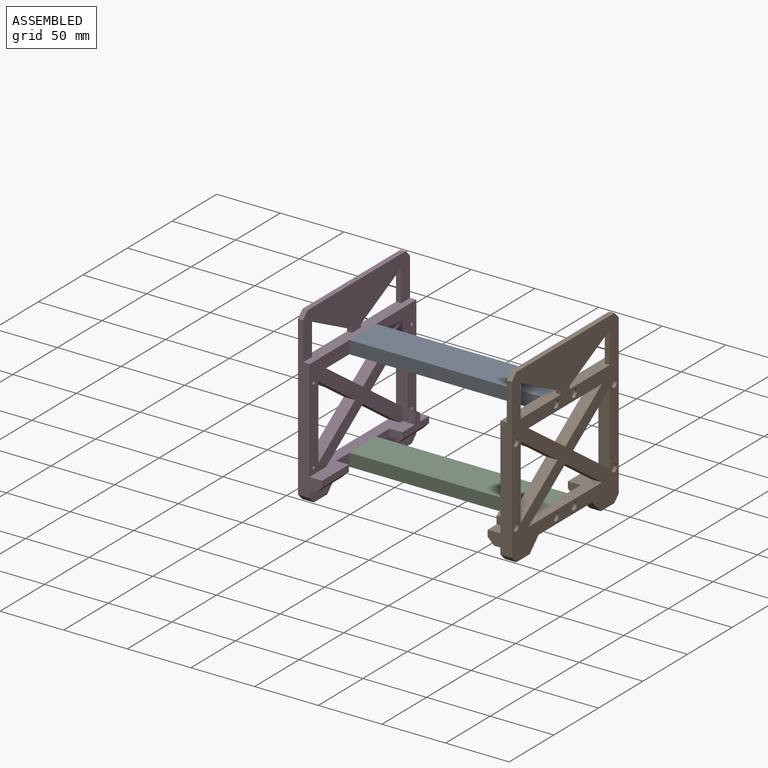
[diagram: assembled view]
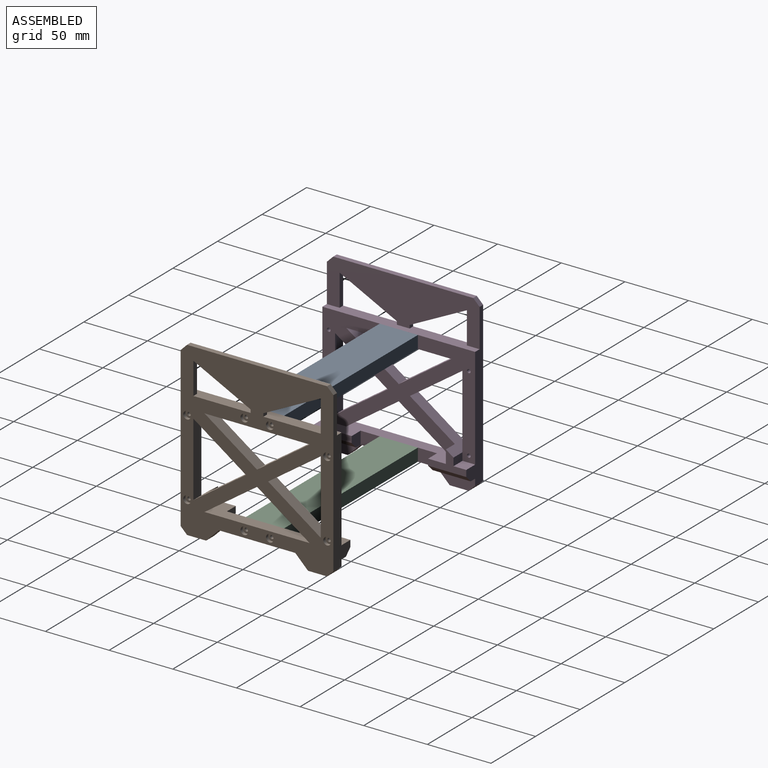
[diagram: assembled view, second angle]
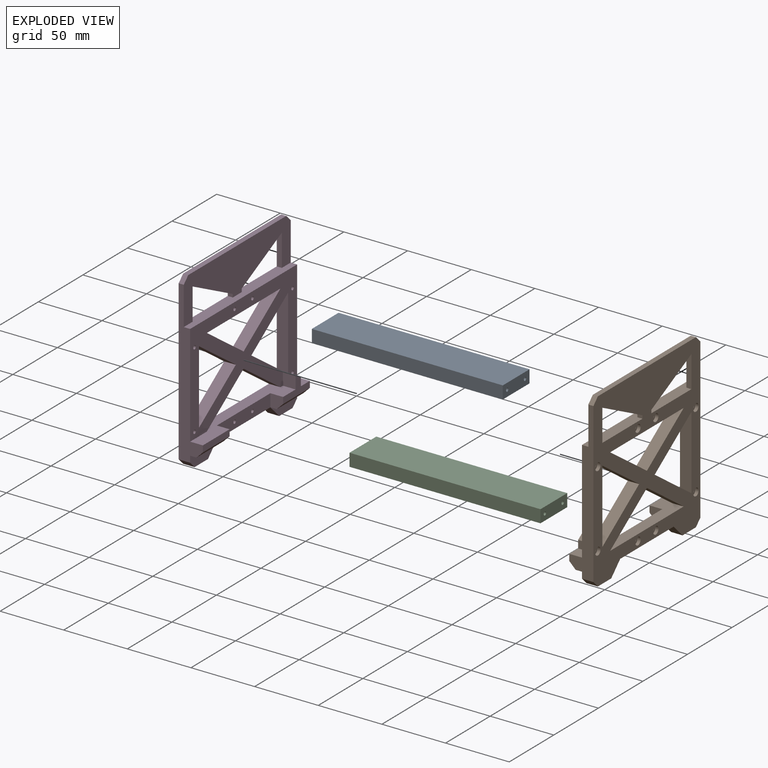
[diagram: exploded view]
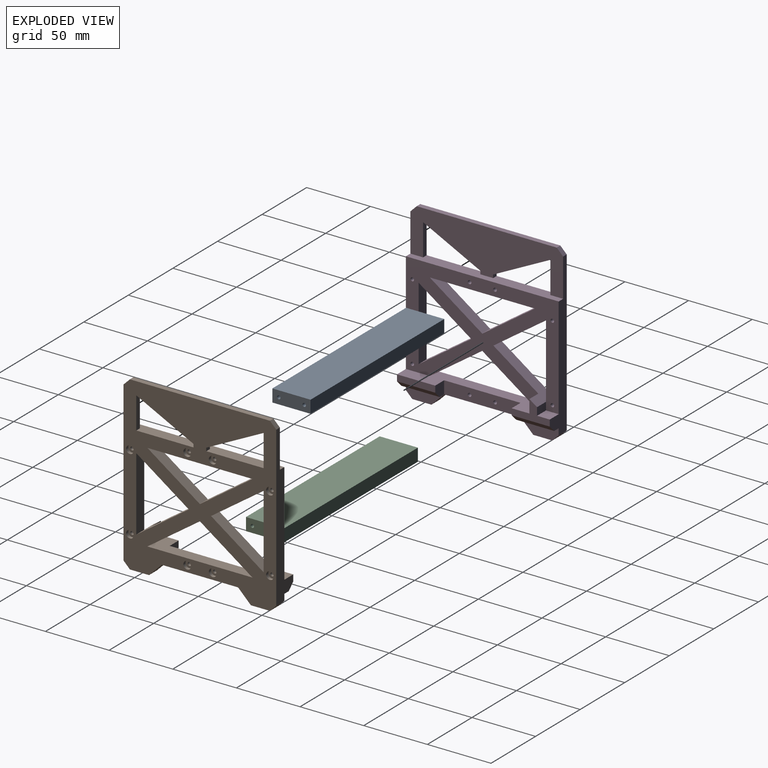
[diagram: exploded view, second angle]
ASSEMBLY  parts=4 mates=3
PART A: 14 faces, bbox 150x30x10 mm
  f0: plane 150x10mm, normal (0,-1,0), area 1500mm2, adj f1,f3,f4,f5
  f1: plane 30x10mm, normal (1,0,0), area 288.5mm2, adj f0,f2,f4,f5,f11,f13
  f2: plane 150x10mm, normal (0,1,0), area 1500mm2, adj f1,f3,f4,f5
  f3: plane 30x10mm, normal (-1,0,0), area 288.5mm2, adj f0,f2,f4,f5,f7,f9
  f4: plane 150x30mm, normal (0,0,1), area 4500mm2, adj f0,f1,f2,f3
  f5: plane 150x30mm, normal (0,0,-1), area 4500mm2, adj f0,f1,f2,f3
  f6: cone r=0mm half-angle=59deg, axis (-1,0,0), area 6.7mm2, adj f7
  f7: cylinder r=1.35mm len=10mm, axis (-1,0,0), area 84.8mm2, adj f3,f6
  f8: cone r=0mm half-angle=59deg, axis (-1,0,0), area 6.7mm2, adj f9
  f9: cylinder r=1.35mm len=10mm, axis (-1,0,0), area 84.8mm2, adj f3,f8
  f10: cone r=0mm half-angle=59deg, axis (1,0,0), area 6.7mm2, adj f11
  f11: cylinder r=1.35mm len=10mm, axis (1,0,0), area 84.8mm2, adj f1,f10
  f12: cone r=0mm half-angle=59deg, axis (1,0,0), area 6.7mm2, adj f13
  f13: cylinder r=1.35mm len=10mm, axis (1,0,0), area 84.8mm2, adj f1,f12
PART B: 72 faces, bbox 120x19x135 mm
  f0: plane 135x120mm, normal (0,1,0), area 9214.8mm2, adj f4,f5,f6,f7,f8,f9,f10,f11
  f1: plane 30x10mm, normal (0,-1,0), area 237.5mm2, adj f10,f11,f12,f29,f38
  f2: plane 60x10mm, normal (0,-1,0), area 587.7mm2, adj f5,f9,f31,f37,f42,f45
  f3: plane 120x80mm, normal (0,-1,0), area 4742.3mm2, adj f4,f5,f6,f7,f12,f13,f14,f15
  f4: plane 41.28x28.9mm, normal (-0.57,0,-0.82), area 453.5mm2, adj f0,f3,f5,f23
  f5: plane 104x19mm, normal (0,0,1), area 1183.1mm2, adj f0,f2,f3,f4,f14,f23,f31,f33
  f6: plane 41.28x28.9mm, normal (-0.57,0,0.82), area 453.5mm2, adj f0,f3,f7,f19
  f7: plane 57.79x9mm, normal (1,0,0), area 520.1mm2, adj f0,f3,f6,f19
  f8: plane 10x10mm, normal (0.71,0,-0.71), area 127.3mm2, adj f0,f9,f20,f24
  f9: plane 60x9mm, normal (0,0,-1), area 540mm2, adj f0,f2,f8,f10
  f10: plane 10x10mm, normal (-0.71,0,-0.71), area 127.3mm2, adj f0,f1,f9,f11
  f11: plane 15x9mm, normal (0,0,-1), area 135mm2, adj f0,f1,f10,f29
  f12: plane 125x19mm, normal (1,0,0), area 1062.5mm2, adj f0,f1,f3,f13,f25,f27,f29,f34
  f13: plane 120x9mm, normal (0,0,1), area 960mm2, adj f0,f3,f12,f14,f25,f66,f68,f70
  f14: plane 125x19mm, normal (-1,0,0), area 1062.5mm2, adj f0,f3,f5,f13,f24,f25,f28,f30
  f15: plane 57.79x9mm, normal (-1,0,0), area 520.1mm2, adj f0,f3,f16,f21
  f16: plane 41.28x28.9mm, normal (0.57,0,0.82), area 526.7mm2, adj f0,f3,f15,f21,f35,f36,f39
  f17: plane 82.56x9mm, normal (0,0,-1), area 743.1mm2, adj f0,f3,f18,f22
  f18: plane 41.28x28.9mm, normal (-0.57,0,0.82), area 453.5mm2, adj f0,f3,f17,f22
  f19: plane 41.28x28.9mm, normal (-0.57,0,-0.82), area 453.5mm2, adj f0,f3,f6,f7
  f20: plane 15x9mm, normal (0,0,-1), area 135mm2, adj f0,f8,f24,f30
  f21: plane 41.28x28.9mm, normal (0.57,0,-0.82), area 453.5mm2, adj f0,f3,f15,f16
  f22: plane 41.28x28.9mm, normal (0.57,0,0.82), area 453.5mm2, adj f0,f3,f17,f18
  f23: plane 41.28x28.9mm, normal (0.57,0,-0.82), area 453.5mm2, adj f0,f3,f4,f5
  f24: plane 30x10mm, normal (0,-1,0), area 237.5mm2, adj f8,f14,f20,f30,f32
  f25: plane 120x35mm, normal (0,-1,0), area 2937.5mm2, adj f12,f13,f14,f26,f27,f28,f66,f67
  f26: plane 110x4mm, normal (0,0,1), area 440mm2, adj f0,f25,f27,f28
  f27: plane 5x5mm, normal (0.71,0,0.71), area 28.3mm2, adj f0,f12,f25,f26
  f28: plane 5x5mm, normal (-0.71,0,0.71), area 28.3mm2, adj f0,f14,f25,f26
  f29: plane 9x5mm, normal (0.71,0,-0.71), area 63.6mm2, adj f0,f1,f11,f12
  f30: plane 9x5mm, normal (-0.71,0,-0.71), area 63.6mm2, adj f0,f14,f20,f24
  f31: plane 10x10mm, normal (1,0,0), area 87.5mm2, adj f2,f5,f32,f33,f41
  f32: plane 30x5mm, normal (0,0,-1), area 150mm2, adj f14,f24,f31,f41
  f33: plane 30x5mm, normal (0,-1,0), area 150mm2, adj f5,f14,f31,f41
  f34: plane 10x10mm, normal (0,0,1), area 100mm2, adj f3,f12,f35,f39
  f35: plane 10x6.1mm, normal (1,0,0), area 61mm2, adj f3,f16,f34,f39
  f36: plane 10.3x10mm, normal (-1,0,0), area 103mm2, adj f3,f5,f16,f39
  f37: plane 10x10mm, normal (-1,0,0), area 87.5mm2, adj f2,f5,f38,f39,f40
  f38: plane 30x5mm, normal (0,0,-1), area 150mm2, adj f1,f12,f37,f40
  f39: plane 30x15.3mm, normal (0,-1,0), area 199.2mm2, adj f5,f12,f16,f34,f35,f36,f37,f40
  f40: plane 30x5mm, normal (0,-0.71,-0.71), area 212.1mm2, adj f12,f37,f38,f39
  f41: plane 30x5mm, normal (0,-0.71,-0.71), area 212.1mm2, adj f14,f31,f32,f33
  f42: cylinder r=1.4mm len=6.5mm, axis (0,1,0), area 57.2mm2, adj f2,f43
  f43: plane 6x6mm, normal (0,1,0), area 22.1mm2, adj f42,f44
  f44: cylinder r=3mm len=6mm, axis (0,1,0), area 47.1mm2, adj f0,f43
  f45: cylinder r=1.4mm len=6.5mm, axis (0,1,0), area 57.2mm2, adj f2,f46
  f46: plane 6x6mm, normal (0,1,0), area 22.1mm2, adj f45,f47
  f47: cylinder r=3mm len=6mm, axis (0,1,0), area 47.1mm2, adj f0,f46
  f48: cylinder r=1.4mm len=6.5mm, axis (0,1,0), area 57.2mm2, adj f3,f49
  f49: plane 6x6mm, normal (0,1,0), area 22.1mm2, adj f48,f50
  f50: cylinder r=3mm len=6mm, axis (0,1,0), area 47.1mm2, adj f0,f49
  f51: cylinder r=1.4mm len=6.5mm, axis (0,1,0), area 57.2mm2, adj f3,f52
  f52: plane 6x6mm, normal (0,1,0), area 22.1mm2, adj f51,f53
  f53: cylinder r=3mm len=6mm, axis (0,1,0), area 47.1mm2, adj f0,f52
  f54: cylinder r=1.4mm len=6.5mm, axis (0,1,0), area 57.2mm2, adj f3,f55
  f55: plane 6x6mm, normal (0,1,0), area 22.1mm2, adj f54,f56
  f56: cylinder r=3mm len=6mm, axis (0,1,0), area 47.1mm2, adj f0,f55
  f57: cylinder r=1.4mm len=6.5mm, axis (0,1,0), area 57.2mm2, adj f3,f58
  f58: plane 6x6mm, normal (0,1,0), area 22.1mm2, adj f57,f59
  f59: cylinder r=3mm len=6mm, axis (0,1,0), area 47.1mm2, adj f0,f58
  f60: cylinder r=1.4mm len=6.5mm, axis (0,1,0), area 57.2mm2, adj f3,f61
  f61: plane 6x6mm, normal (0,1,0), area 22.1mm2, adj f60,f62
  f62: cylinder r=3mm len=6mm, axis (0,1,0), area 47.1mm2, adj f0,f61
  f63: cylinder r=1.4mm len=6.5mm, axis (0,1,0), area 57.2mm2, adj f3,f64
  f64: plane 6x6mm, normal (0,1,0), area 22.1mm2, adj f63,f65
  f65: cylinder r=3mm len=6mm, axis (0,1,0), area 47.1mm2, adj f0,f64
  f66: plane 4x2.5mm, normal (1,0,0), area 10mm2, adj f0,f13,f25,f67
  f67: plane 45x22.5mm, normal (0.45,0,-0.89), area 201.2mm2, adj f0,f25,f66,f68
  f68: plane 25x4mm, normal (-1,0,0), area 100mm2, adj f0,f13,f25,f67
  f69: plane 45x22.5mm, normal (-0.45,0,-0.89), area 201.2mm2, adj f0,f25,f70,f71
  f70: plane 4x2.5mm, normal (-1,0,0), area 10mm2, adj f0,f13,f25,f69
  f71: plane 25x4mm, normal (1,0,0), area 100mm2, adj f0,f13,f25,f69
PART C: same geometry as A
PART D: same geometry as B
PLACE A t=(0,0,80)mm
PLACE B rot(axis=(0,0,-1),90deg) t=(80,0,45)mm
PLACE C at identity fixed
PLACE D rot(axis=(0,0,1),90deg) t=(-80,0,45)mm
MATE fastened C.f8 <-> D.f45  axis (-1,0,0) through (-75,-10,5)mm
MATE fastened A.f6 <-> D.f48  axis (-1,0,0) through (-75,10,85)mm
MATE fastened C.f8 <-> B.f42  axis (1,0,0) through (75,-10,5)mm
